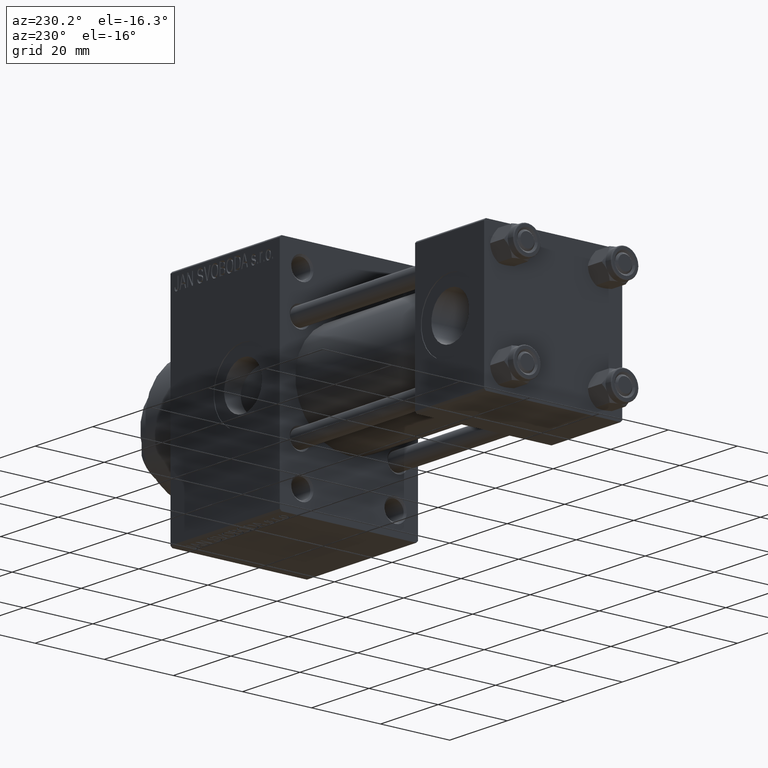
[diagram: clean part render]
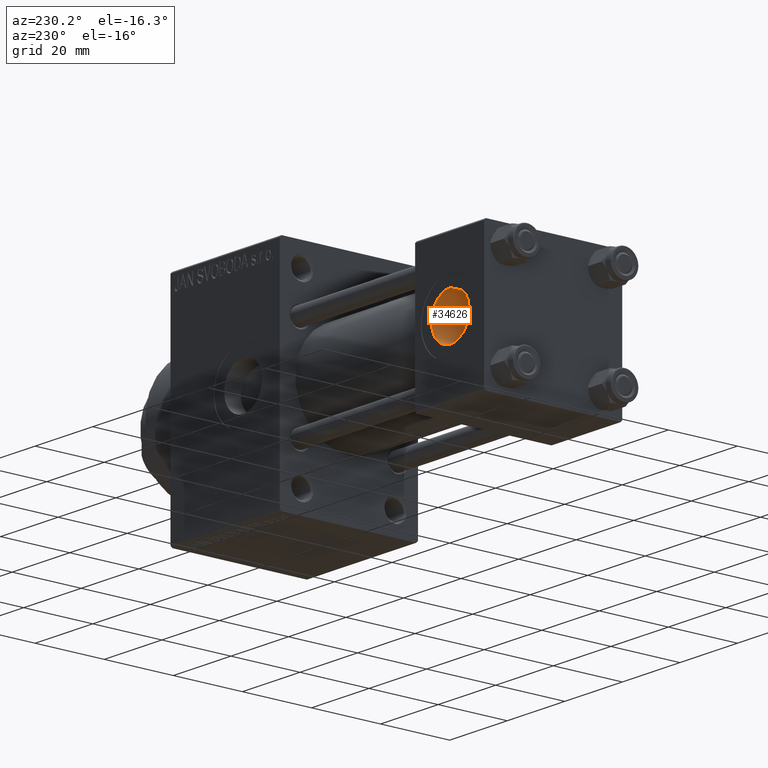
[diagram: same view with one face highlighted and labeled with its STEP entity id]
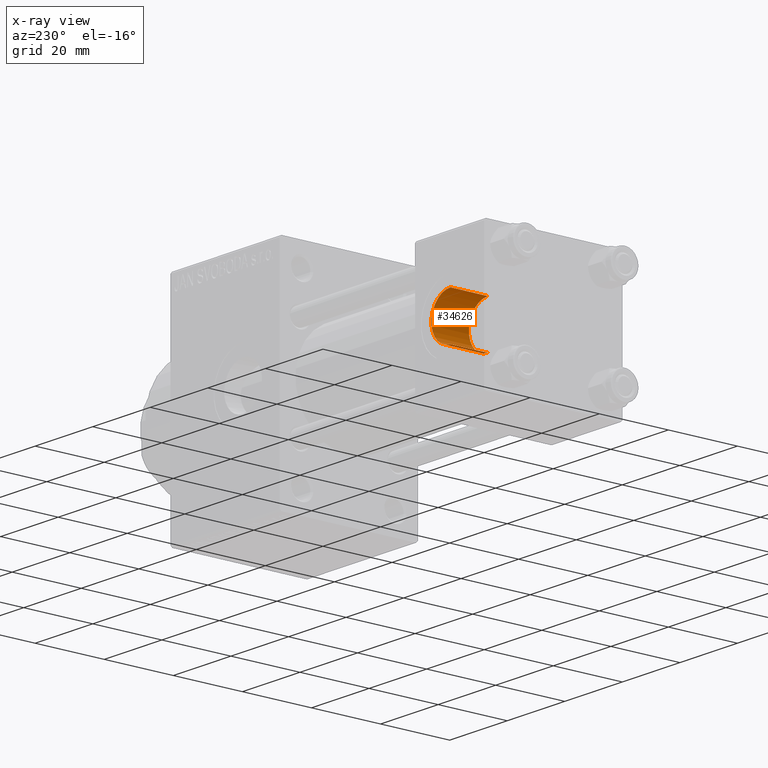
[diagram: x-ray of the same camera — body ghosted, the highlighted face saturated]
A machine part, auxiliary view. The second image highlights one B-rep face of the part: STEP entity #34626.
The next image is the same camera in x-ray: the body ghosted, the highlighted face saturated — about 0% of this face is hidden behind the body in this view.
In plain terms, the highlighted cylindrical surface (edge-blend (fillet) strip) has radius 6.58 mm, axis along (0, 1, 0).
Its self-contained STEP definition (entity closure, byte-faithful):
#1410 = DIRECTION ( 'NONE',  ( -0.000000000000000000, 1.000000000000000000, -0.000000000000000000 ) ) ;
#3255 = CIRCLE ( 'NONE', #44112, 6.579999999999998295 ) ;
#3347 = EDGE_CURVE ( 'NONE', #40532, #12847, #18142, .T. ) ;
#3756 = DIRECTION ( 'NONE',  ( 0.000000000000000000, 0.000000000000000000, 1.000000000000000000 ) ) ;
#7162 = EDGE_CURVE ( 'NONE', #19660, #40532, #3255, .T. ) ;
#8543 = VECTOR ( 'NONE', #14223, 1000.000000000000000 ) ;
#8823 = CARTESIAN_POINT ( 'NONE',  ( 12.00000000000000000, 8.939999999999997726, 6.579999999999998295 ) ) ;
#10930 = EDGE_CURVE ( 'NONE', #19660, #21732, #11060, .T. ) ;
#11060 = LINE ( 'NONE', #44530, #34732 ) ;
#11078 = ORIENTED_EDGE ( 'NONE', *, *, #46260, .T. ) ;
#11635 = DIRECTION ( 'NONE',  ( -0.000000000000000000, -1.000000000000000000, -0.000000000000000000 ) ) ;
#12847 = VERTEX_POINT ( 'NONE', #14776 ) ;
#13580 = AXIS2_PLACEMENT_3D ( 'NONE', #35610, #1410, #31180 ) ;
#14223 = DIRECTION ( 'NONE',  ( -0.000000000000000000, 1.000000000000000000, -0.000000000000000000 ) ) ;
#14776 = CARTESIAN_POINT ( 'NONE',  ( 12.00000000000000000, 19.80000000000000071, 6.579999999999998295 ) ) ;
#15162 = CIRCLE ( 'NONE', #26137, 6.579999999999998295 ) ;
#17168 = CARTESIAN_POINT ( 'NONE',  ( 12.00000000000000000, 9.000000000000001776, 6.579999999999998295 ) ) ;
#18142 = LINE ( 'NONE', #17168, #8543 ) ;
#19660 = VERTEX_POINT ( 'NONE', #38520 ) ;
#20127 = CYLINDRICAL_SURFACE ( 'NONE', #13580, 6.579999999999998295 ) ;
#21368 = ORIENTED_EDGE ( 'NONE', *, *, #3347, .T. ) ;
#21732 = VERTEX_POINT ( 'NONE', #40478 ) ;
#24297 = FACE_OUTER_BOUND ( 'NONE', #38107, .T. ) ;
#26137 = AXIS2_PLACEMENT_3D ( 'NONE', #36978, #33276, #48309 ) ;
#26635 = CARTESIAN_POINT ( 'NONE',  ( 12.00000000000000000, 8.939999999999997726, 0.000000000000000000 ) ) ;
#28577 = ORIENTED_EDGE ( 'NONE', *, *, #7162, .T. ) ;
#31180 = DIRECTION ( 'NONE',  ( 0.000000000000000000, 0.000000000000000000, 1.000000000000000000 ) ) ;
#33276 = DIRECTION ( 'NONE',  ( 0.000000000000000000, 1.000000000000000000, 0.000000000000000000 ) ) ;
#34626 = ADVANCED_FACE ( 'NONE', ( #24297 ), #20127, .F. ) ;
#34732 = VECTOR ( 'NONE', #40597, 1000.000000000000000 ) ;
#35610 = CARTESIAN_POINT ( 'NONE',  ( 12.00000000000000000, 9.000000000000001776, 0.000000000000000000 ) ) ;
#36978 = CARTESIAN_POINT ( 'NONE',  ( 12.00000000000000000, 19.80000000000000071, 0.000000000000000000 ) ) ;
#38107 = EDGE_LOOP ( 'NONE', ( #39664, #28577, #21368, #11078 ) ) ;
#38520 = CARTESIAN_POINT ( 'NONE',  ( 12.00000000000000000, 8.939999999999997726, -6.579999999999998295 ) ) ;
#39664 = ORIENTED_EDGE ( 'NONE', *, *, #10930, .F. ) ;
#40478 = CARTESIAN_POINT ( 'NONE',  ( 12.00000000000000000, 19.80000000000000071, -6.579999999999998295 ) ) ;
#40532 = VERTEX_POINT ( 'NONE', #8823 ) ;
#40597 = DIRECTION ( 'NONE',  ( -0.000000000000000000, 1.000000000000000000, -0.000000000000000000 ) ) ;
#44112 = AXIS2_PLACEMENT_3D ( 'NONE', #26635, #11635, #3756 ) ;
#44530 = CARTESIAN_POINT ( 'NONE',  ( 12.00000000000000000, 9.000000000000001776, -6.579999999999998295 ) ) ;
#46260 = EDGE_CURVE ( 'NONE', #12847, #21732, #15162, .T. ) ;
#48309 = DIRECTION ( 'NONE',  ( 0.000000000000000000, 0.000000000000000000, 1.000000000000000000 ) ) ;